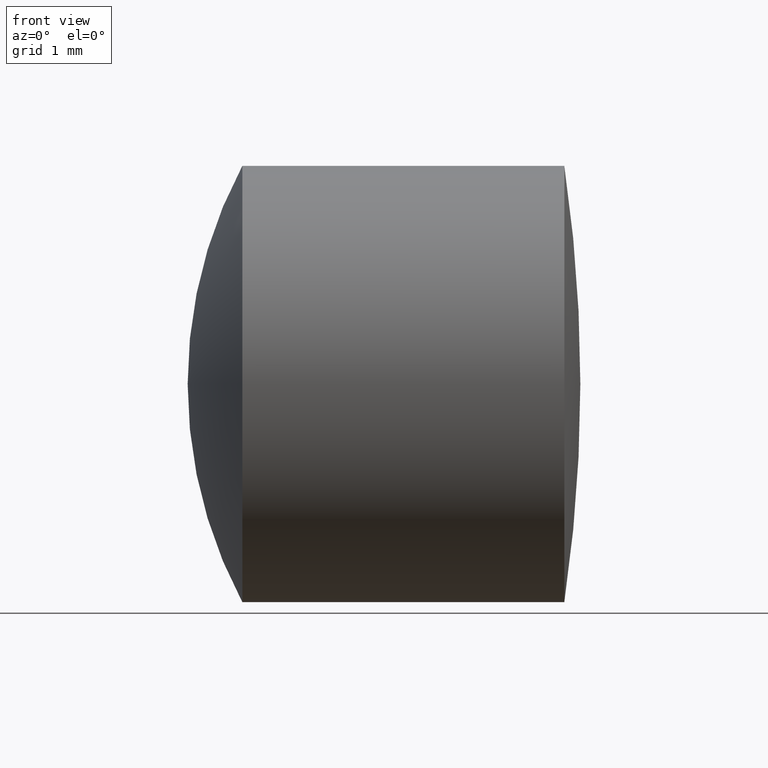
[diagram: clean part render]
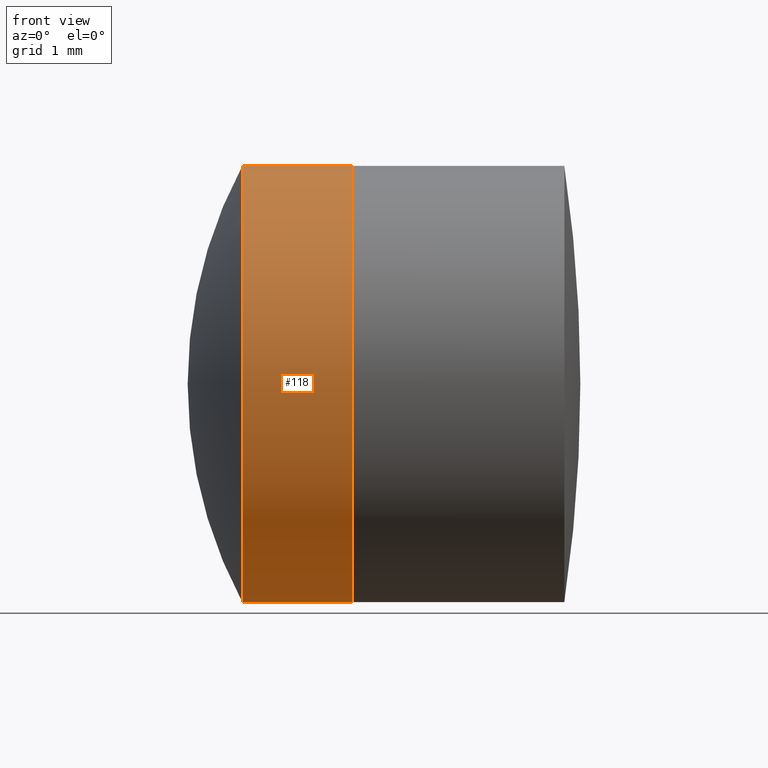
[diagram: same view with one face highlighted and labeled with its STEP entity id]
A machine part, front view. The second image highlights one B-rep face of the part: STEP entity #118.
In plain terms, the highlighted cylindrical surface (partial cylindrical patch) has radius 2.5 mm, axis along (-1, -0, -0).
Its self-contained STEP definition (entity closure, byte-faithful):
#6 = DIRECTION ( 'NONE',  ( -1.000000000000000000, -0.0000000000000000000, -0.0000000000000000000 ) ) ;
#12 = ORIENTED_EDGE ( 'NONE', *, *, #94, .F. ) ;
#16 = DIRECTION ( 'NONE',  ( 0.0000000000000000000, 0.0000000000000000000, 1.000000000000000000 ) ) ;
#26 = CARTESIAN_POINT ( 'NONE',  ( 1.904885754841989100, 0.0000000000000000000, 0.0000000000000000000 ) ) ;
#32 = LINE ( 'NONE', #178, #320 ) ;
#41 = CARTESIAN_POINT ( 'NONE',  ( 3.171540242480312100, 0.0000000000000000000, 0.0000000000000000000 ) ) ;
#53 = EDGE_CURVE ( 'NONE', #210, #245, #65, .T. ) ;
#65 = CIRCLE ( 'NONE', #181, 2.500000000000000000 ) ;
#73 = EDGE_CURVE ( 'NONE', #131, #231, #140, .T. ) ;
#87 = ORIENTED_EDGE ( 'NONE', *, *, #73, .T. ) ;
#94 = EDGE_CURVE ( 'NONE', #131, #210, #32, .T. ) ;
#109 = EDGE_LOOP ( 'NONE', ( #12, #87, #226, #280 ) ) ;
#116 = DIRECTION ( 'NONE',  ( 0.0000000000000000000, 0.0000000000000000000, 1.000000000000000000 ) ) ;
#118 = ADVANCED_FACE ( 'NONE', ( #269 ), #159, .T. ) ;
#131 = VERTEX_POINT ( 'NONE', #326 ) ;
#140 = CIRCLE ( 'NONE', #235, 2.500000000000000400 ) ;
#151 = DIRECTION ( 'NONE',  ( -1.000000000000000000, -0.0000000000000000000, -0.0000000000000000000 ) ) ;
#159 = CYLINDRICAL_SURFACE ( 'NONE', #223, 2.500000000000000400 ) ;
#178 = CARTESIAN_POINT ( 'NONE',  ( -0.8160621761658039000, 3.061616997868383600E-016, -2.500000000000000400 ) ) ;
#181 = AXIS2_PLACEMENT_3D ( 'NONE', #26, #262, #16 ) ;
#209 = DIRECTION ( 'NONE',  ( -1.000000000000000000, -0.0000000000000000000, -0.0000000000000000000 ) ) ;
#210 = VERTEX_POINT ( 'NONE', #260 ) ;
#214 = LINE ( 'NONE', #273, #241 ) ;
#223 = AXIS2_PLACEMENT_3D ( 'NONE', #334, #225, #116 ) ;
#225 = DIRECTION ( 'NONE',  ( -1.000000000000000000, -0.0000000000000000000, -0.0000000000000000000 ) ) ;
#226 = ORIENTED_EDGE ( 'NONE', *, *, #237, .T. ) ;
#231 = VERTEX_POINT ( 'NONE', #300 ) ;
#235 = AXIS2_PLACEMENT_3D ( 'NONE', #41, #151, #327 ) ;
#237 = EDGE_CURVE ( 'NONE', #231, #245, #214, .T. ) ;
#241 = VECTOR ( 'NONE', #6, 1000.000000000000000 ) ;
#245 = VERTEX_POINT ( 'NONE', #344 ) ;
#260 = CARTESIAN_POINT ( 'NONE',  ( 1.904885754841988900, 3.061616997868383100E-016, -2.500000000000000000 ) ) ;
#262 = DIRECTION ( 'NONE',  ( -1.000000000000000000, -0.0000000000000000000, -0.0000000000000000000 ) ) ;
#269 = FACE_OUTER_BOUND ( 'NONE', #109, .T. ) ;
#273 = CARTESIAN_POINT ( 'NONE',  ( -0.8160621761658039000, 0.0000000000000000000, 2.500000000000000400 ) ) ;
#280 = ORIENTED_EDGE ( 'NONE', *, *, #53, .F. ) ;
#300 = CARTESIAN_POINT ( 'NONE',  ( 3.171540242480312100, 0.0000000000000000000, 2.500000000000000400 ) ) ;
#320 = VECTOR ( 'NONE', #209, 1000.000000000000000 ) ;
#326 = CARTESIAN_POINT ( 'NONE',  ( 3.171540242480312100, 3.061616997868383600E-016, -2.500000000000000400 ) ) ;
#327 = DIRECTION ( 'NONE',  ( 0.0000000000000000000, 0.0000000000000000000, 1.000000000000000000 ) ) ;
#334 = CARTESIAN_POINT ( 'NONE',  ( -0.8160621761658039000, 0.0000000000000000000, 0.0000000000000000000 ) ) ;
#344 = CARTESIAN_POINT ( 'NONE',  ( 1.904885754841988900, 0.0000000000000000000, 2.500000000000000000 ) ) ;